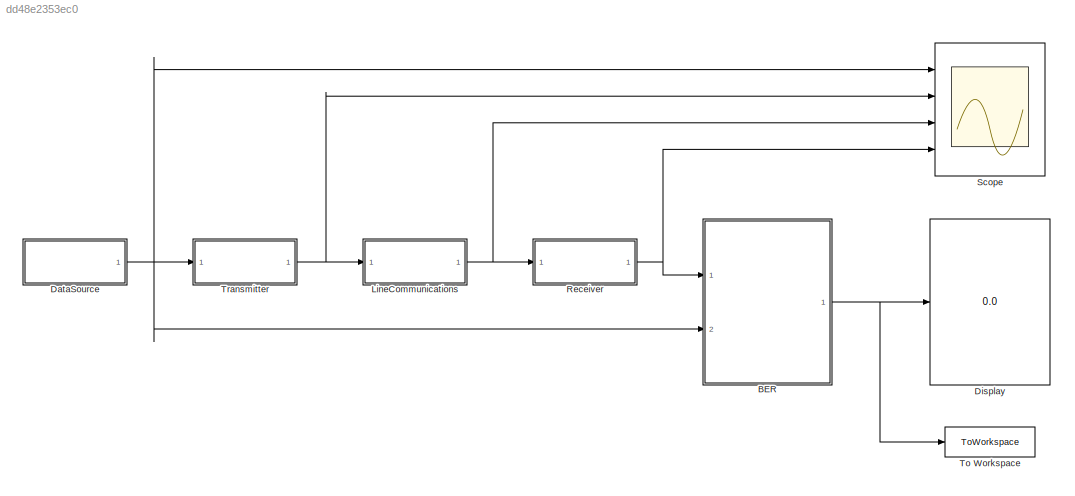
MODEL slx_dd48e2353ec0
KIND model
CONFIG AbsTol = auto
CONFIG EnableMultiTasking = off
CONFIG FixedStep = auto
CONFIG InitFcn = phy_model
CONFIG MaxStep = auto
CONFIG MinStep = auto
CONFIG RelTol = 1e-3
CONFIG SampleTimeConstraint = Unconstrained
CONFIG SolverName = VariableStepAuto
CONFIG StartTime = 0.0
CONFIG StopTime = inf
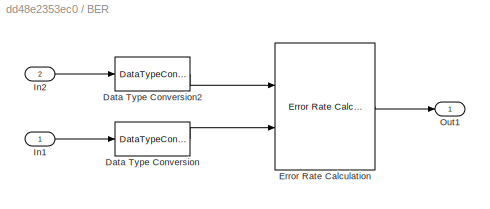
BLOCK [SubSystem] BER
  Ports = [2, 1]
  RequestExecContextInheritance = off
BLOCK [DataTypeConversion] BER/Data Type Conversion
  OutDataTypeStr = double
  RndMeth = Floor
  SaturateOnIntegerOverflow = off
BLOCK [DataTypeConversion] BER/Data Type Conversion2
  OutDataTypeStr = double
  RndMeth = Floor
  SaturateOnIntegerOverflow = off
BLOCK [Reference] BER/Error Rate Calculation  REF=commsink2/Error Rate
Calculation
  Ports = [2, 1]
  SourceBlock = commsink2/Error Rate\nCalculation
  SourceProductBaseCode = CM
  SourceType = Error Rate Calculation
BLOCK [Inport] BER/In1
BLOCK [Inport] BER/In2
  Port = 2
BLOCK [Outport] BER/Out1
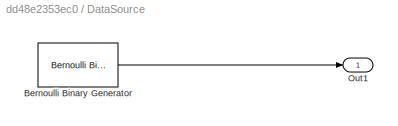
BLOCK [SubSystem] DataSource
  Ports = [0, 1]
  RequestExecContextInheritance = off
BLOCK [Reference] DataSource/Bernoulli Binary Generator  REF=commrandsrc3/Bernoulli Binary
Generator
  Ports = [0, 1]
  SourceBlock = commrandsrc3/Bernoulli Binary\nGenerator
  SourceProductBaseCode = CM
  SourceType = Bernoulli Binary Generator
BLOCK [Outport] DataSource/Out1
BLOCK [Display] Display
  Decimation = 1
  Ports = [1]
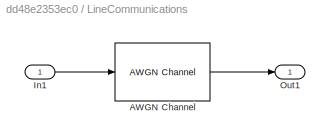
BLOCK [SubSystem] LineCommunications
  Ports = [1, 1]
  RequestExecContextInheritance = off
BLOCK [Reference] LineCommunications/AWGN Channel  REF=commchan3/AWGN
Channel
  Ports = [1, 1]
  SourceBlock = commchan3/AWGN\nChannel
  SourceProductBaseCode = CM
  SourceType = AWGN Channel
  UserDataPersistent = on
BLOCK [Inport] LineCommunications/In1
BLOCK [Outport] LineCommunications/Out1
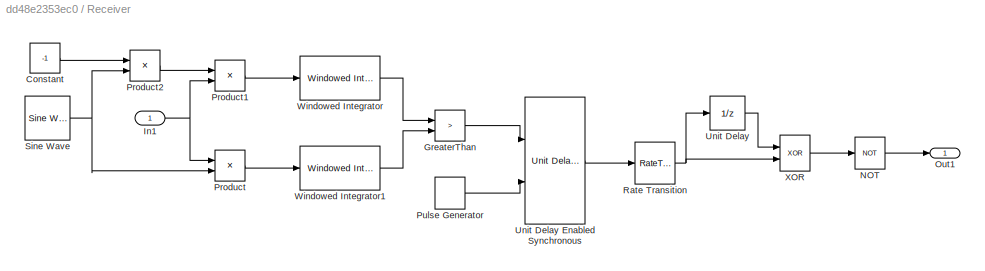
BLOCK [SubSystem] Receiver
  Ports = [1, 1]
  RequestExecContextInheritance = off
BLOCK [Constant] Receiver/Constant
  Value = -1
BLOCK [RelationalOperator] Receiver/GreaterThan
  InputSameDT = off
  Operator = >
  OutDataTypeStr = boolean
  Ports = [2, 1]
  RndMeth = Simplest
BLOCK [Inport] Receiver/In1
BLOCK [Logic] Receiver/NOT
  AllPortsSameDT = off
  IconShape = distinctive
  Operator = NOT
  OutDataTypeStr = boolean
  Ports = [1, 1]
BLOCK [Outport] Receiver/Out1
BLOCK [Product] Receiver/Product
  Ports = [2, 1]
BLOCK [Product] Receiver/Product1
  Ports = [2, 1]
BLOCK [Product] Receiver/Product2
  Ports = [2, 1]
BLOCK [DiscretePulseGenerator] Receiver/Pulse Generator
  Period = Tb/Ts
  PhaseDelay = Tb/Ts-1
  Ports = [0, 1]
  SampleTime = Ts
BLOCK [RateTransition] Receiver/Rate Transition
  Integrity = off
  OutPortSampleTime = Tb
BLOCK [Reference] Receiver/Sine Wave  REF=dspsrcs4/Sine Wave
  Ports = [0, 1]
  SourceBlock = dspsrcs4/Sine Wave
  SourceProductBaseCode = DS
  SourceType = Sine Wave
BLOCK [UnitDelay] Receiver/Unit Delay
  HasFrameUpgradeWarning = on
  SampleTime = -1
BLOCK [Reference] Receiver/Unit Delay Enabled Synchronous  REF=hdlsllib/Discrete/Unit Delay Enabled
Synchronous
  Ports = [2, 1]
  SourceBlock = hdlsllib/Discrete/Unit Delay Enabled\nSynchronous
  SourceProductBaseCode = SL
  SourceType = Unit Delay Enabled Synchronous
BLOCK [Reference] Receiver/Windowed Integrator  REF=commfilt2/Windowed
Integrator
  Ports = [1, 1]
  SourceBlock = commfilt2/Windowed\nIntegrator
  SourceProductBaseCode = CM
  SourceType = Windowed Integrator
  UserDataPersistent = on
BLOCK [Reference] Receiver/Windowed Integrator1  REF=commfilt2/Windowed
Integrator
  Ports = [1, 1]
  SourceBlock = commfilt2/Windowed\nIntegrator
  SourceProductBaseCode = CM
  SourceType = Windowed Integrator
  UserDataPersistent = on
BLOCK [Logic] Receiver/XOR
  AllPortsSameDT = off
  IconShape = distinctive
  Operator = XOR
  OutDataTypeStr = boolean
  Ports = [2, 1]
BLOCK [Scope] Scope
  Floating = off
  NumInputPorts = 4
  Ports = [4]
  ScopeSpecificationString = Simulink.scopes.TimeScopeBlockCfg('CurrentConfiguration', extmgr.ConfigurationSet(extmgr.Configuration('Core','General UI',true),extmgr.Configuration('Core','Source UI',true),extmgr.Configuration('Sources','WiredSimulink',true),extmgr.Configuration('Visuals','Time Domain',true,'SerializedDisplays',{struct('MinYLimReal','-0.125','MaxYLimReal','1.125','YLabelReal','','MinYLimMag','0.00000','MaxYLimM...<+3395ch>
BLOCK [ToWorkspace] To Workspace
  FixptAsFi = on
  MaxDataPoints = 10
  Ports = [1]
  SampleTime = -1
  Save2DSignal = 2-D array (concatenate along first dimension)
  VariableName = BER
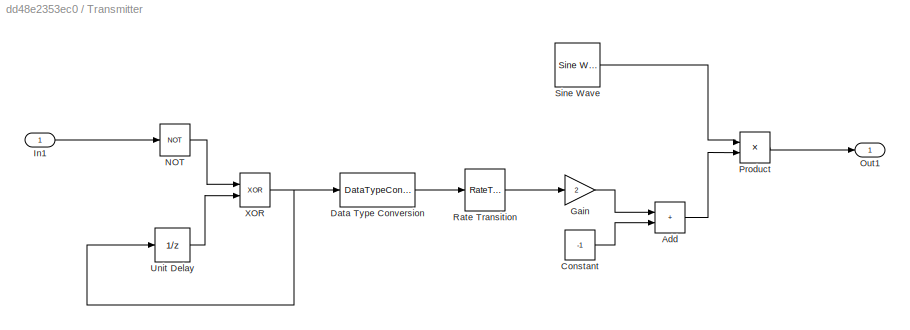
BLOCK [SubSystem] Transmitter
  Ports = [1, 1]
  RequestExecContextInheritance = off
BLOCK [Sum] Transmitter/Add
  IconShape = rectangular
  Ports = [2, 1]
BLOCK [Constant] Transmitter/Constant
  Value = -1
BLOCK [DataTypeConversion] Transmitter/Data Type Conversion
  OutDataTypeStr = double
  RndMeth = Floor
  SaturateOnIntegerOverflow = off
BLOCK [Gain] Transmitter/Gain
  Gain = 2
BLOCK [Inport] Transmitter/In1
BLOCK [Logic] Transmitter/NOT
  AllPortsSameDT = off
  IconShape = distinctive
  Operator = NOT
  OutDataTypeStr = boolean
  Ports = [1, 1]
BLOCK [Outport] Transmitter/Out1
BLOCK [Product] Transmitter/Product
  Ports = [2, 1]
BLOCK [RateTransition] Transmitter/Rate Transition
  Deterministic = off
  Integrity = off
  OutPortSampleTime = Ts
BLOCK [Reference] Transmitter/Sine Wave  REF=dspsrcs4/Sine Wave
  Ports = [0, 1]
  SourceBlock = dspsrcs4/Sine Wave
  SourceProductBaseCode = DS
  SourceType = Sine Wave
BLOCK [UnitDelay] Transmitter/Unit Delay
  HasFrameUpgradeWarning = on
  SampleTime = -1
BLOCK [Logic] Transmitter/XOR
  AllPortsSameDT = off
  IconShape = distinctive
  Operator = XOR
  OutDataTypeStr = boolean
  Ports = [2, 1]
LINE BER/Data Type Conversion2:1 -> BER/Error Rate Calculation:1
LINE BER/Data Type Conversion:1 -> BER/Error Rate Calculation:2
LINE BER/Error Rate Calculation:1 -> BER/Out1:1
LINE BER/In1:1 -> BER/Data Type Conversion:1
LINE BER/In2:1 -> BER/Data Type Conversion2:1
NET BER:1 -> Display:1, To Workspace:1
LINE DataSource/Bernoulli Binary Generator:1 -> DataSource/Out1:1
NET DataSource:1 -> BER:2, Scope:1, Transmitter:1
LINE LineCommunications/AWGN Channel:1 -> LineCommunications/Out1:1
LINE LineCommunications/In1:1 -> LineCommunications/AWGN Channel:1
NET LineCommunications:1 -> Receiver:1, Scope:3
LINE Receiver/Constant:1 -> Receiver/Product2:1
LINE Receiver/GreaterThan:1 -> Receiver/Unit Delay Enabled Synchronous:1
NET Receiver/In1:1 -> Receiver/Product1:2, Receiver/Product:1
LINE Receiver/NOT:1 -> Receiver/Out1:1
LINE Receiver/Product1:1 -> Receiver/Windowed Integrator:1
LINE Receiver/Product2:1 -> Receiver/Product1:1
LINE Receiver/Product:1 -> Receiver/Windowed Integrator1:1
LINE Receiver/Pulse Generator:1 -> Receiver/Unit Delay Enabled Synchronous:2
NET Receiver/Rate Transition:1 -> Receiver/Unit Delay:1, Receiver/XOR:2
NET Receiver/Sine Wave:1 -> Receiver/Product2:2, Receiver/Product:2
LINE Receiver/Unit Delay Enabled Synchronous:1 -> Receiver/Rate Transition:1
LINE Receiver/Unit Delay:1 -> Receiver/XOR:1
LINE Receiver/Windowed Integrator1:1 -> Receiver/GreaterThan:2
LINE Receiver/Windowed Integrator:1 -> Receiver/GreaterThan:1
LINE Receiver/XOR:1 -> Receiver/NOT:1
NET Receiver:1 -> BER:1, Scope:4
LINE Transmitter/Add:1 -> Transmitter/Product:2
LINE Transmitter/Constant:1 -> Transmitter/Add:2
LINE Transmitter/Data Type Conversion:1 -> Transmitter/Rate Transition:1
LINE Transmitter/Gain:1 -> Transmitter/Add:1
LINE Transmitter/In1:1 -> Transmitter/NOT:1
LINE Transmitter/NOT:1 -> Transmitter/XOR:1
LINE Transmitter/Product:1 -> Transmitter/Out1:1
LINE Transmitter/Rate Transition:1 -> Transmitter/Gain:1
LINE Transmitter/Sine Wave:1 -> Transmitter/Product:1
LINE Transmitter/Unit Delay:1 -> Transmitter/XOR:2
NET Transmitter/XOR:1 -> Transmitter/Data Type Conversion:1, Transmitter/Unit Delay:1
NET Transmitter:1 -> LineCommunications:1, Scope:2
note: NET lines group one-source signal fan-out (src -> all destinations, sorted); 1:1 wires keep LINE
